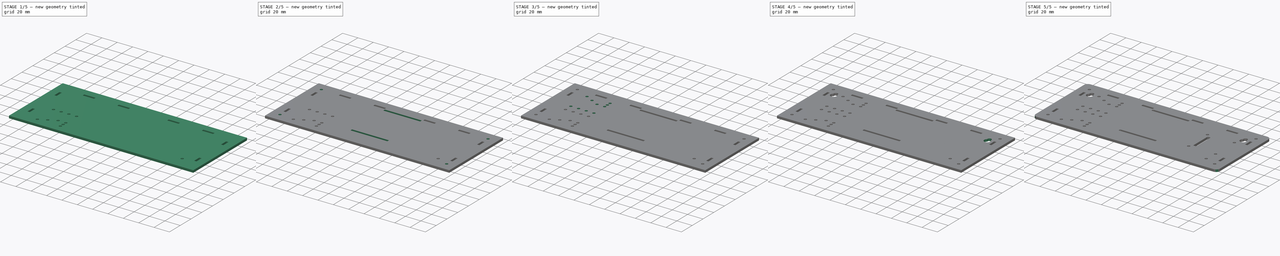
[diagram: build sequence overview — one tinted view per stage of 5, left to right]
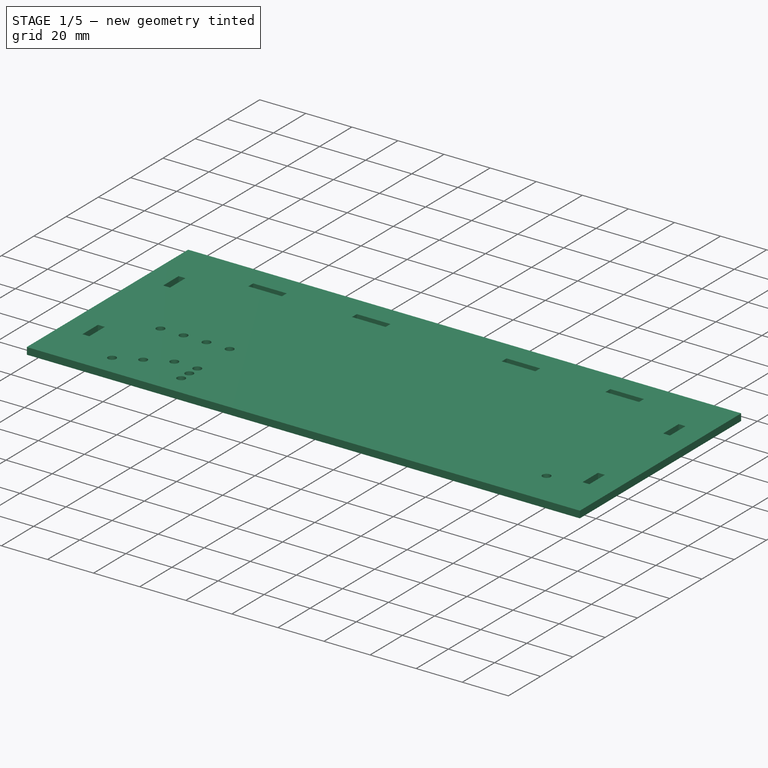
[diagram: stage 1 of 5 — iso view after this stage's code; geometry added in this stage tinted green]
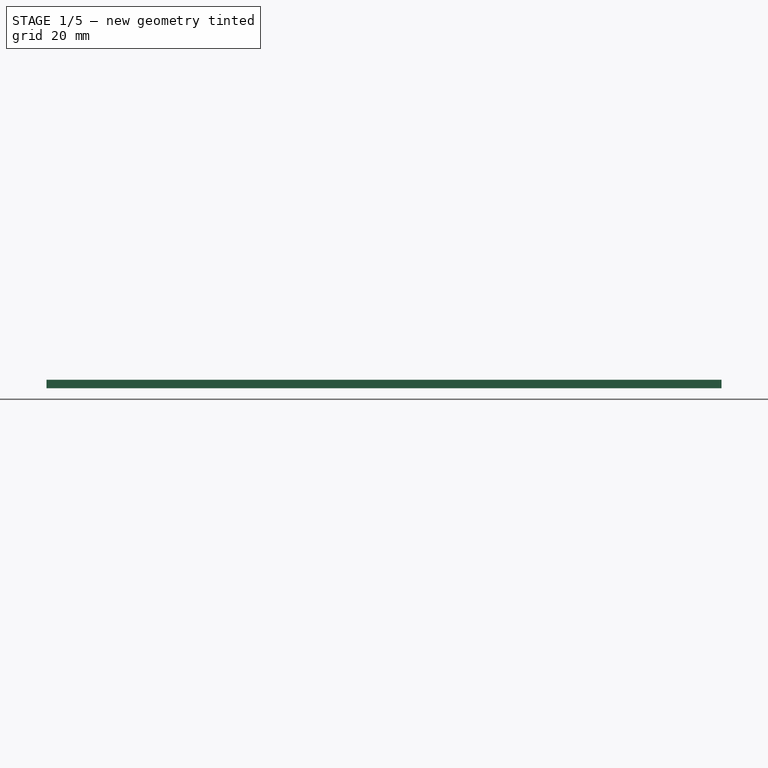
[diagram: stage 1 of 5 — front view after this stage's code; geometry added in this stage tinted green]
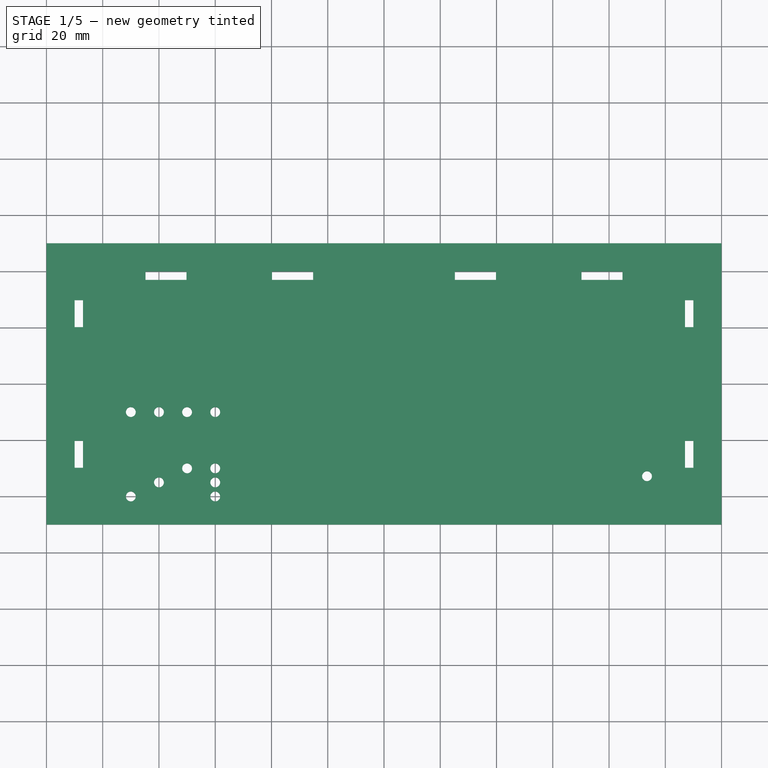
[diagram: stage 1 of 5 — top view after this stage's code; geometry added in this stage tinted green]
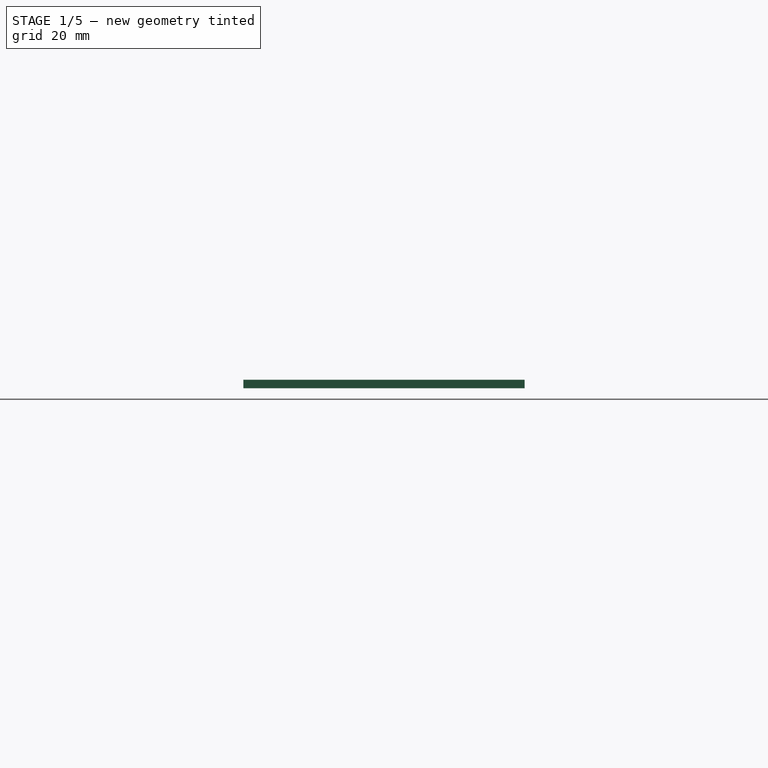
[diagram: stage 1 of 5 — right view after this stage's code; geometry added in this stage tinted green]
FCSTD DOCUMENT
Label: weather_kit_back
objects: Sketcher::SketchObject×8, PartDesign::Pad×8, Part::Cut×7, Part::Fillet×2, Drawing::FeatureViewPart×1, Drawing::FeaturePage×1
note: 33 computed .brp shape members not serialized (recipe doc carries the construction recipe); baked Part::Feature solids carry a one-line shape summary decoded from their .brp

FEATURE [PartDesign::Pad] Pad001
  Length = 3
  Length2 = 100
  Sketch = -> Sketch003003
  Type = 0
FEATURE [PartDesign::Pad] Pad009
  Length = 3
  Length2 = 100
  Sketch = -> Sketch003004
  Type = 0
FEATURE [Part::Cut] Cut
  Base = -> Pad001
  Tool = -> Pad009
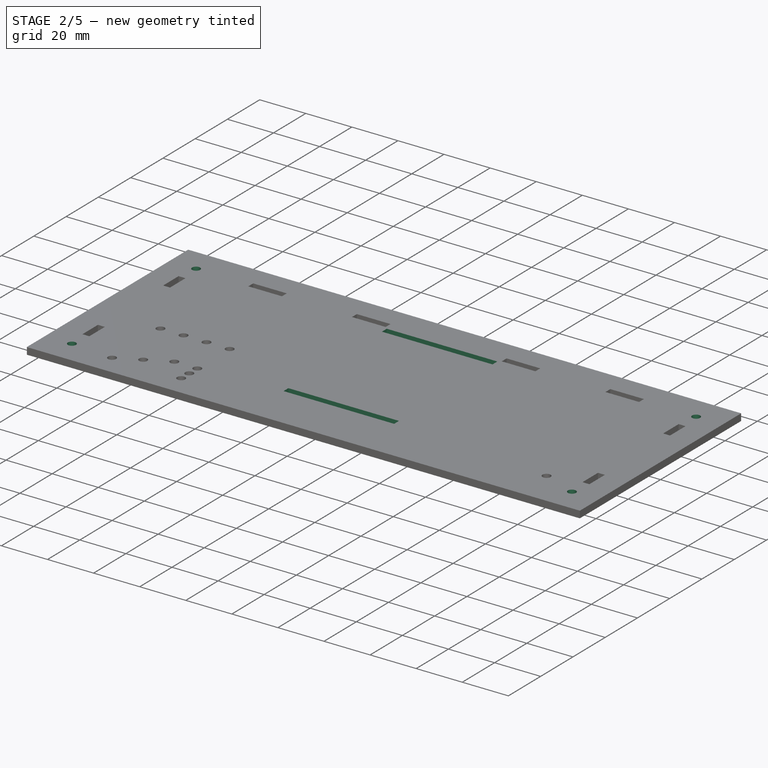
[diagram: stage 2 of 5 — iso view after this stage's code; geometry added in this stage tinted green]
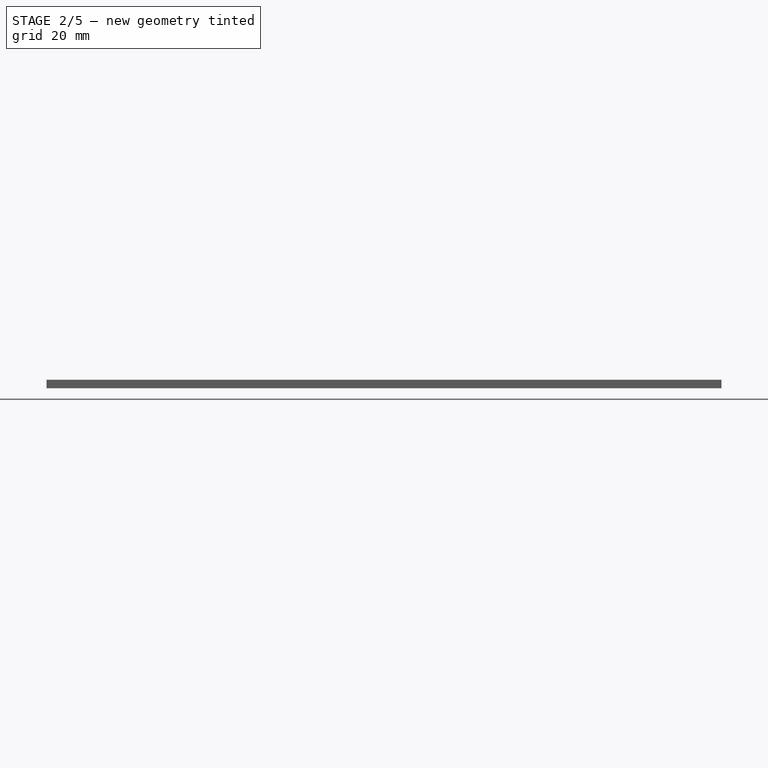
[diagram: stage 2 of 5 — front view after this stage's code; geometry added in this stage tinted green]
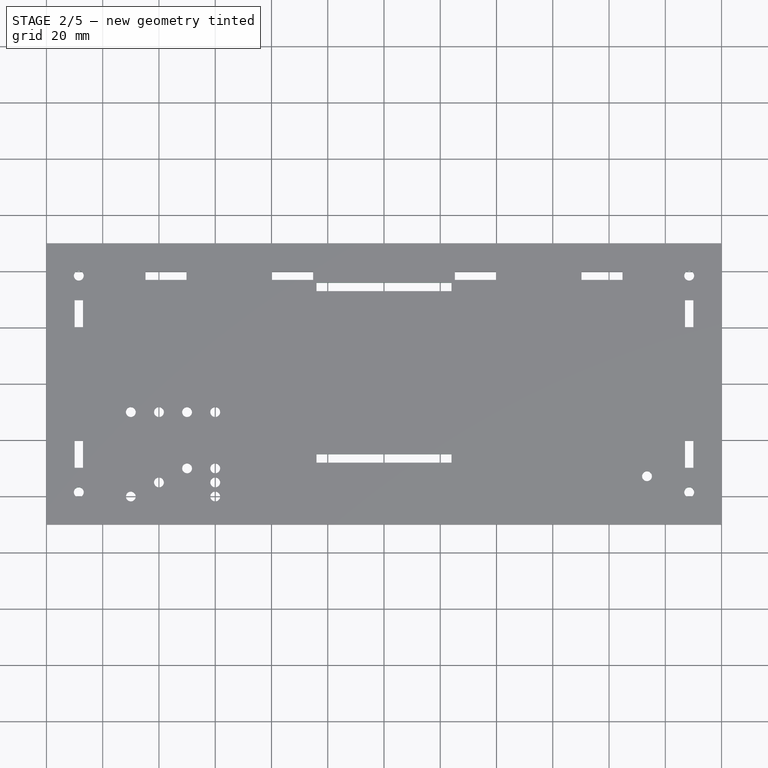
[diagram: stage 2 of 5 — top view after this stage's code; geometry added in this stage tinted green]
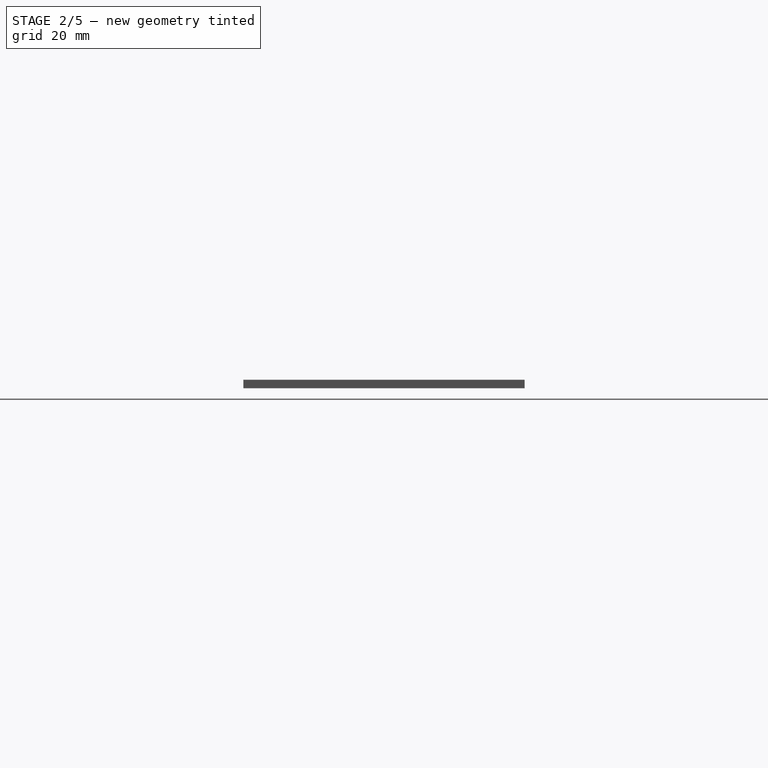
[diagram: stage 2 of 5 — right view after this stage's code; geometry added in this stage tinted green]
FEATURE [PartDesign::Pad] Pad003
  Length = 3
  Length2 = 100
  Sketch = -> Sketch002
  Type = 0
FEATURE [Sketcher::SketchObject] Sketch003007
  sketch-geometry (4):
    g0: Circle CenterX=-108.5 CenterY=38.5 CenterZ=0 NormalX=0 NormalY=0 NormalZ=1 Radius=1.75
    g1: Circle CenterX=-108.5 CenterY=-38.5 CenterZ=0 NormalX=0 NormalY=0 NormalZ=1 Radius=1.75
    g2: Circle CenterX=108.5 CenterY=-38.5 CenterZ=0 NormalX=0 NormalY=0 NormalZ=1 Radius=1.75
    g3: Circle CenterX=108.5 CenterY=38.5 CenterZ=0 NormalX=0 NormalY=0 NormalZ=1 Radius=1.75
  constraints (12):
    c: Radius(g0) = 1.75
    c: Radius(g1) = 1.75
    c: Radius(g2) = 1.75
    c: Radius(g3) = 1.75
    c: DistanceX(g-1,g0) = -108.5
    c: DistanceY(g-1,g0) = 38.5
    c: DistanceX(g-1,g1) = -108.5
    c: DistanceY(g-1,g1) = -38.5
    c: DistanceX(g-1,g2) = 108.5
    c: DistanceY(g-1,g2) = -38.5
    c: DistanceX(g-1,g3) = 108.5
    c: DistanceY(g-1,g3) = 38.5
FEATURE [PartDesign::Pad] Pad010
  Length = 3
  Length2 = 100
  Sketch = -> Sketch003007
  Type = 0
FEATURE [Part::Cut] Cut001
  Base = -> Cut
  Tool = -> Pad003
FEATURE [Part::Cut] Cut002
  Base = -> Cut001
  Tool = -> Pad010
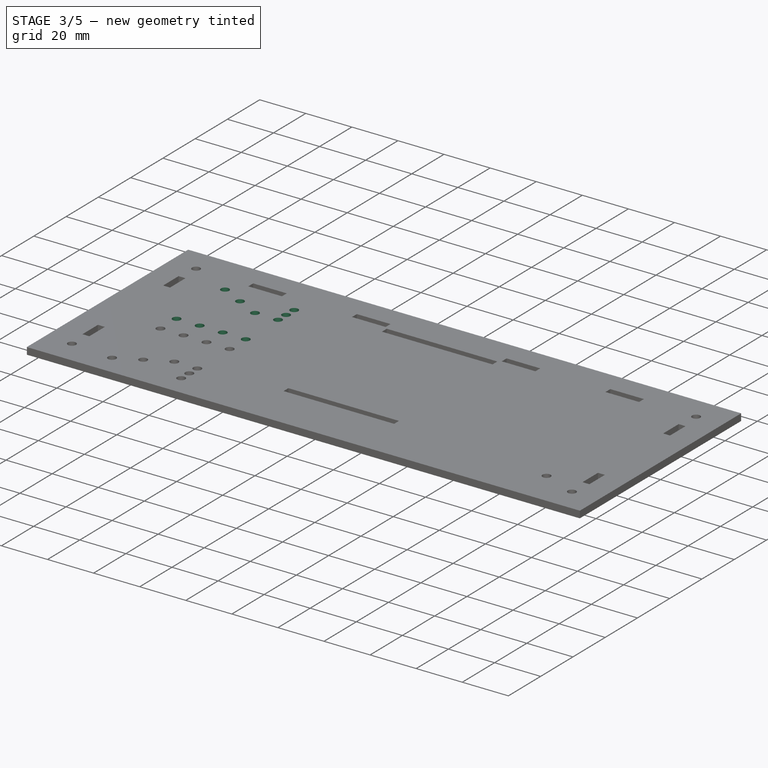
[diagram: stage 3 of 5 — iso view after this stage's code; geometry added in this stage tinted green]
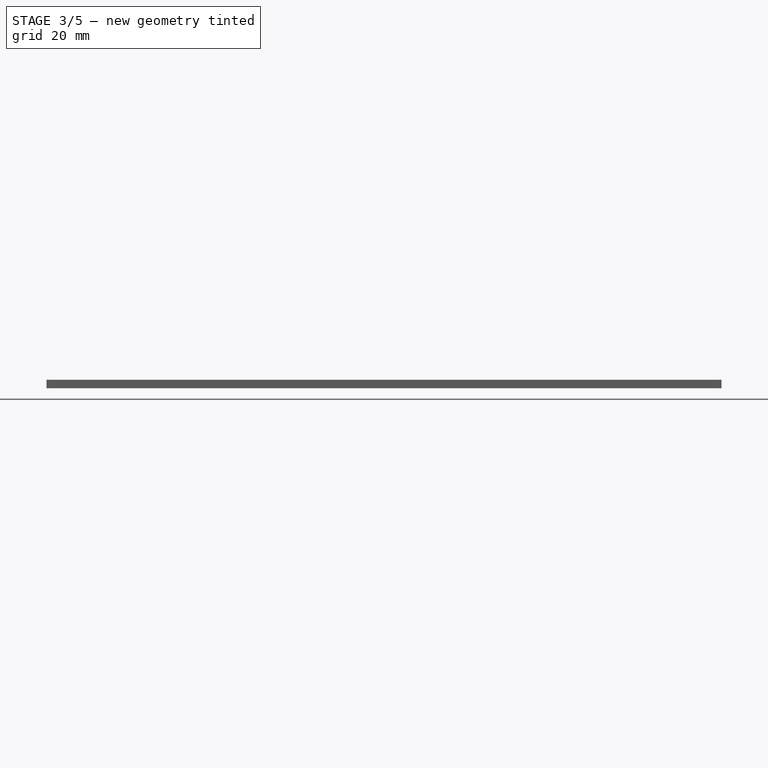
[diagram: stage 3 of 5 — front view after this stage's code; geometry added in this stage tinted green]
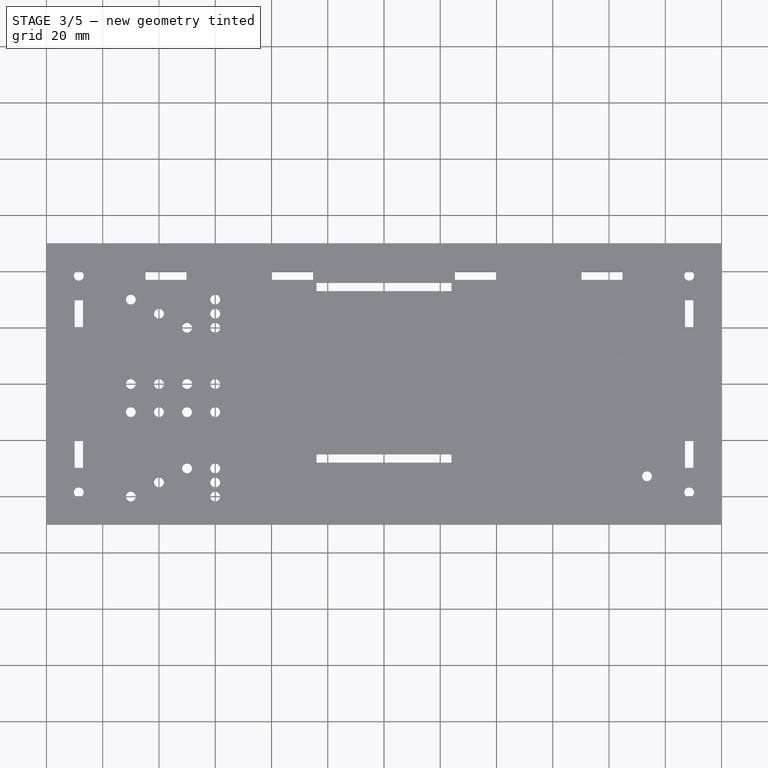
[diagram: stage 3 of 5 — top view after this stage's code; geometry added in this stage tinted green]
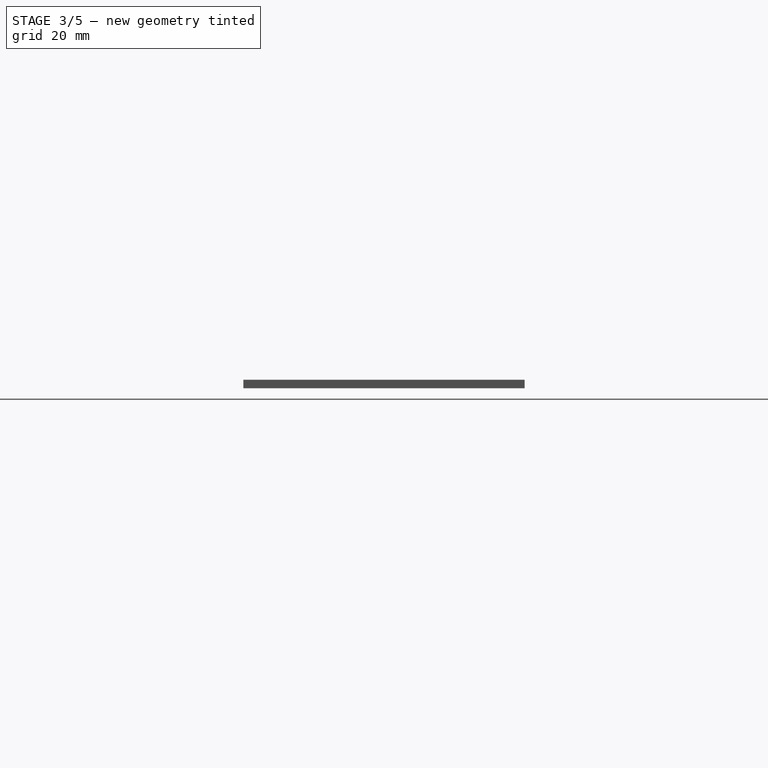
[diagram: stage 3 of 5 — right view after this stage's code; geometry added in this stage tinted green]
FEATURE [PartDesign::Pad] Pad007
  Length = 3
  Length2 = 100
  Sketch = -> Sketch003005
  Type = 0
FEATURE [PartDesign::Pad] Pad008
  Length = 3
  Length2 = 100
  Sketch = -> Sketch
  Type = 0
FEATURE [Part::Cut] Cut003
  Base = -> Cut002
  Tool = -> Pad008
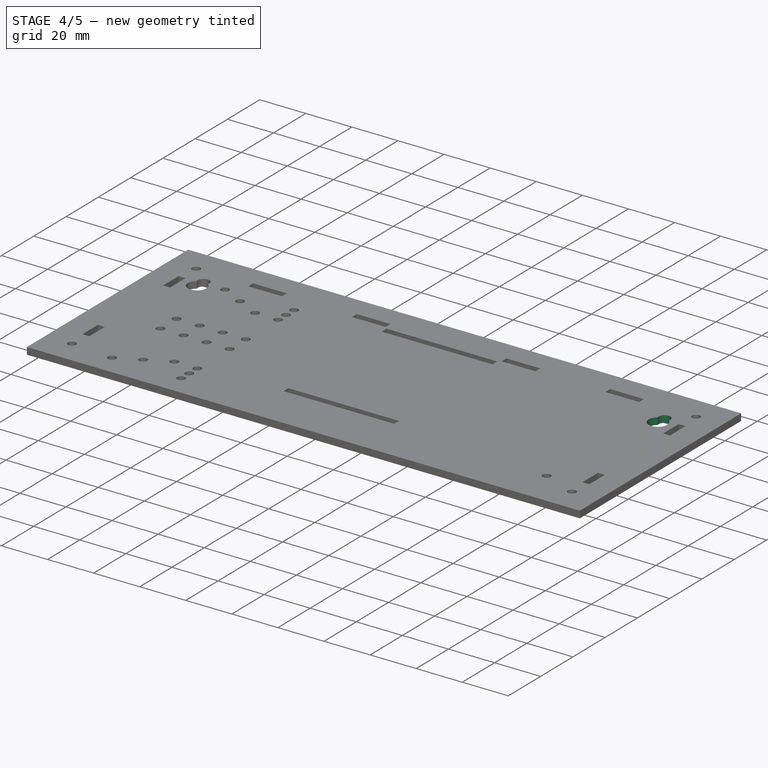
[diagram: stage 4 of 5 — iso view after this stage's code; geometry added in this stage tinted green]
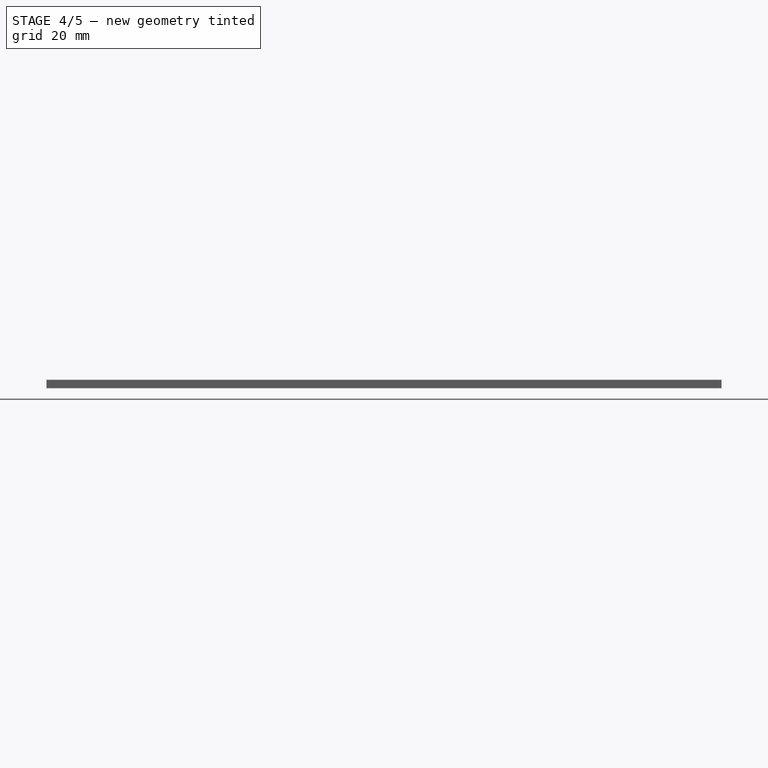
[diagram: stage 4 of 5 — front view after this stage's code; geometry added in this stage tinted green]
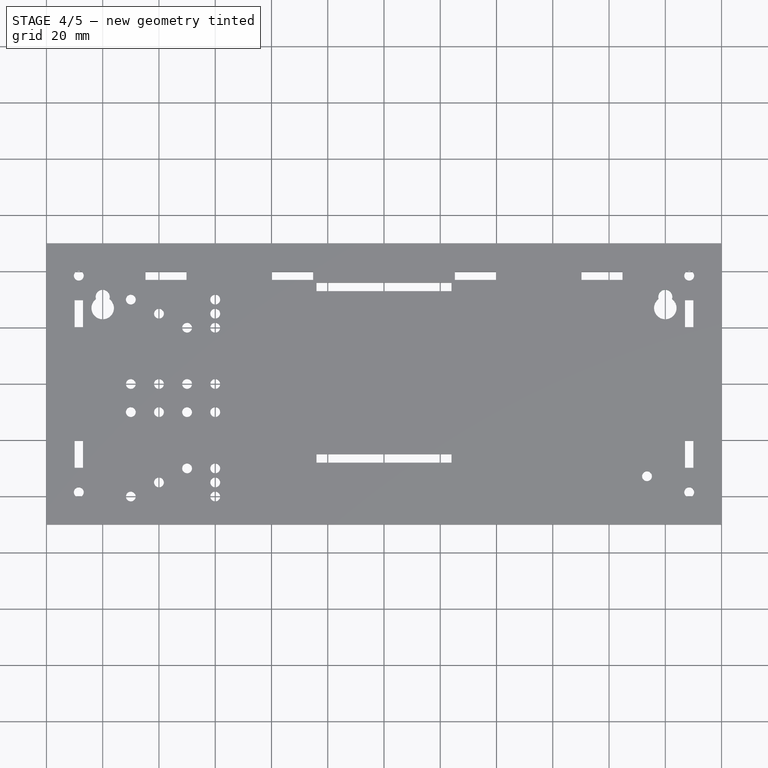
[diagram: stage 4 of 5 — top view after this stage's code; geometry added in this stage tinted green]
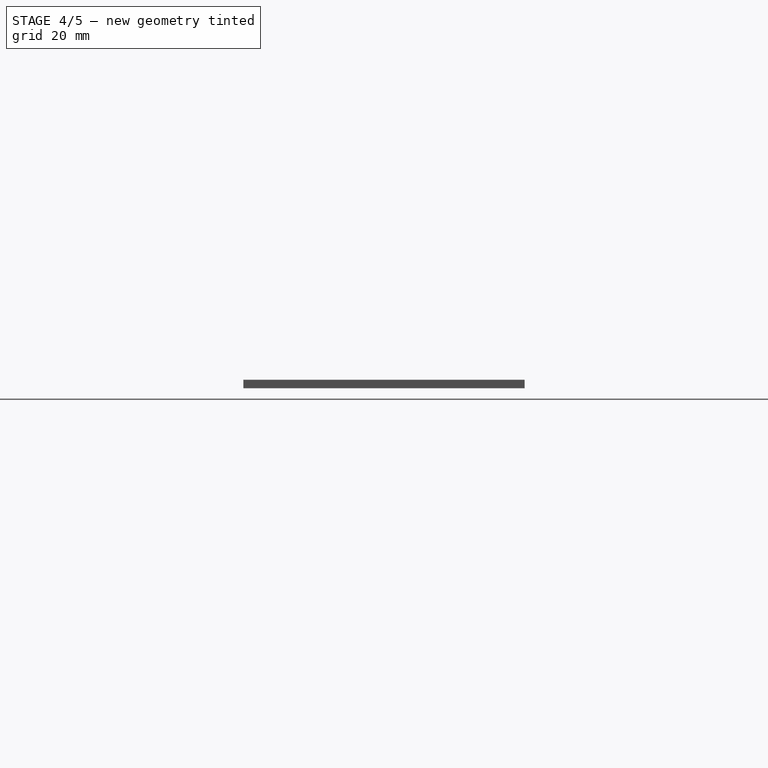
[diagram: stage 4 of 5 — right view after this stage's code; geometry added in this stage tinted green]
FEATURE [Sketcher::SketchObject] Sketch002  label="SketchRASP"
  sketch-geometry (13):
    g0: LineSegment [constr] StartX=39.3983 StartY=57.7127 StartZ=0 EndX=39.3983 EndY=42.7127 EndZ=0
    g1: LineSegment [constr] StartX=-42.5 StartY=32 StartZ=0 EndX=42.5 EndY=32 EndZ=0
    g2: LineSegment [constr] StartX=42.5 StartY=32 StartZ=0 EndX=42.5 EndY=-24 EndZ=0
    g3: LineSegment [constr] StartX=42.5 StartY=-24 StartZ=0 EndX=-42.5 EndY=-24 EndZ=0
    g4: LineSegment [constr] StartX=-42.5 StartY=-24 StartZ=0 EndX=-42.5 EndY=32 EndZ=0
    g5: LineSegment StartX=-24 StartY=36 StartZ=0 EndX=24 EndY=36 EndZ=0
    g6: LineSegment StartX=24 StartY=36 StartZ=0 EndX=24 EndY=33 EndZ=0
    g7: LineSegment StartX=24 StartY=33 StartZ=0 EndX=-24 EndY=33 EndZ=0
    g8: LineSegment StartX=-24 StartY=33 StartZ=0 EndX=-24 EndY=36 EndZ=0
    g9: LineSegment StartX=-24 StartY=-25 StartZ=0 EndX=24 EndY=-25 EndZ=0
    g10: LineSegment StartX=24 StartY=-25 StartZ=0 EndX=24 EndY=-28 EndZ=0
    g11: LineSegment StartX=24 StartY=-28 StartZ=0 EndX=-24 EndY=-28 EndZ=0
    g12: LineSegment StartX=-24 StartY=-28 StartZ=0 EndX=-24 EndY=-25 EndZ=0
  constraints (37):
    c: Vertical(g0)
    c: Coincident(g1,g2)
    c: Coincident(g2,g3)
    c: Coincident(g3,g4)
    c: Coincident(g4,g1)
    c: Horizontal(g1)
    c: Horizontal(g3)
    c: Vertical(g2)
    c: Vertical(g4)
    c: DistanceY(g4) = 56
    c: DistanceX(g3) = -85
    c: Coincident(g5,g6)
    c: Coincident(g6,g7)
    c: Coincident(g7,g8)
    c: Coincident(g8,g5)
    c: Horizontal(g5)
    c: Horizontal(g7)
    c: Vertical(g6)
    c: Vertical(g8)
    c: DistanceX(g5) = 48
    c: DistanceY(g6) = -3
    c: Coincident(g9,g10)
    c: Coincident(g10,g11)
    c: Coincident(g11,g12)
    c: Coincident(g12,g9)
    c: Horizontal(g9)
    c: Horizontal(g11)
    c: Vertical(g10)
    c: Vertical(g12)
    c: DistanceY(g10) = -3
    c: DistanceX(g9) = 48
    c: DistanceX(g9,g3) = -18.5
    c: DistanceX(g1,g7) = 18.5
    c: DistanceY(g1,g7) = 1
    c: DistanceY(g3,g9) = -1
    c: DistanceX(g-1,g1) = -42.5
    c: DistanceY(g-1,g1) = 32
FEATURE [Sketcher::SketchObject] Sketch004  label="SketchMaster"
  sketch-geometry (8):
    g0: Circle CenterX=60 CenterY=-17.5 CenterZ=0 NormalX=0 NormalY=0 NormalZ=1 Radius=1.75
    g1: Circle CenterX=60 CenterY=17.5 CenterZ=0 NormalX=0 NormalY=0 NormalZ=1 Radius=1.75
    g2: Circle CenterX=95 CenterY=17.5 CenterZ=0 NormalX=0 NormalY=0 NormalZ=1 Radius=1.75
    g3: Circle CenterX=95 CenterY=-17.5 CenterZ=0 NormalX=0 NormalY=0 NormalZ=1 Radius=1.75
    g4: LineSegment StartX=63 StartY=13.5 StartZ=0 EndX=67 EndY=13.5 EndZ=0
    g5: LineSegment StartX=67 StartY=13.5 StartZ=0 EndX=67 EndY=-13.5 EndZ=0
    g6: LineSegment StartX=67 StartY=-13.5 StartZ=0 EndX=63 EndY=-13.5 EndZ=0
    g7: LineSegment StartX=63 StartY=-13.5 StartZ=0 EndX=63 EndY=13.5 EndZ=0
  constraints (24):
    c: Radius(g3) = 1.75
    c: Radius(g2) = 1.75
    c: Radius(g1) = 1.75
    c: Radius(g0) = 1.75
    c: DistanceX(g1,g0) = 0
    c: DistanceY(g1,g0) = -35
    c: DistanceX(g0,g3) = 35
    c: DistanceY(g0,g3) = 0
    c: DistanceY(g3,g2) = 35
    c: DistanceX(g3,g2) = 0
    c: DistanceX(g-1,g0) = 60
    c: DistanceY(g-1,g0) = -17.5
    c: Coincident(g4,g5)
    c: Coincident(g5,g6)
    c: Coincident(g6,g7)
    c: Coincident(g7,g4)
    c: Horizontal(g4)
    c: Horizontal(g6)
    c: Vertical(g5)
    c: Vertical(g7)
    c: DistanceX(g6) = -4
    c: DistanceY(g3,g5) = 4
    c: DistanceY(g4,g2) = 4
    c: DistanceX(g6,g0) = -3
FEATURE [Sketcher::SketchObject] Sketch003003  label="SketchFront"
  sketch-geometry (37):
    g0: LineSegment StartX=-120 StartY=50 StartZ=0 EndX=120 EndY=50 EndZ=0
    g1: LineSegment StartX=120 StartY=50 StartZ=0 EndX=120 EndY=-50 EndZ=0
    g2: LineSegment StartX=-120 StartY=-50 StartZ=0 EndX=-120 EndY=50 EndZ=0
    g3: LineSegment StartX=107 StartY=-20.2 StartZ=0 EndX=110 EndY=-20.2 EndZ=0
    g4: LineSegment StartX=110 StartY=-20.2 StartZ=0 EndX=110 EndY=-29.8 EndZ=0
    g5: LineSegment StartX=110 StartY=-29.8 StartZ=0 EndX=107 EndY=-29.8 EndZ=0
    g6: LineSegment StartX=107 StartY=-29.8 StartZ=0 EndX=107 EndY=-20.2 EndZ=0
    g7: LineSegment StartX=107 StartY=29.8 StartZ=0 EndX=110 EndY=29.8 EndZ=0
    g8: LineSegment StartX=110 StartY=29.8 StartZ=0 EndX=110 EndY=20.2 EndZ=0
    g9: LineSegment StartX=110 StartY=20.2 StartZ=0 EndX=107 EndY=20.2 EndZ=0
    g10: LineSegment StartX=107 StartY=20.2 StartZ=0 EndX=107 EndY=29.8 EndZ=0
    g11: LineSegment StartX=-110 StartY=29.8 StartZ=0 EndX=-107 EndY=29.8 EndZ=0
    g12: LineSegment StartX=-107 StartY=29.8 StartZ=0 EndX=-107 EndY=20.2 EndZ=0
    g13: LineSegment StartX=-107 StartY=20.2 StartZ=0 EndX=-110 EndY=20.2 EndZ=0
    g14: LineSegment StartX=-110 StartY=20.2 StartZ=0 EndX=-110 EndY=29.8 EndZ=0
    g15: LineSegment StartX=-110 StartY=-20.2 StartZ=0 EndX=-107 EndY=-20.2 EndZ=0
    g16: LineSegment StartX=-107 StartY=-20.2 StartZ=0 EndX=-107 EndY=-29.8 EndZ=0
    g17: LineSegment StartX=-107 StartY=-29.8 StartZ=0 EndX=-110 EndY=-29.8 EndZ=0
    g18: LineSegment StartX=-110 StartY=-29.8 StartZ=0 EndX=-110 EndY=-20.2 EndZ=0
    g19: LineSegment StartX=-84.8 StartY=40 StartZ=0 EndX=-70.2 EndY=40 EndZ=0
    g20: LineSegment StartX=-70.2 StartY=40 StartZ=0 EndX=-70.2 EndY=37 EndZ=0
    g21: LineSegment StartX=-70.2 StartY=37 StartZ=0 EndX=-84.8 EndY=37 EndZ=0
    g22: LineSegment StartX=-84.8 StartY=37 StartZ=0 EndX=-84.8 EndY=40 EndZ=0
    g23: LineSegment StartX=-39.8 StartY=40 StartZ=0 EndX=-25.2 EndY=40 EndZ=0
    g24: LineSegment StartX=-25.2 StartY=40 StartZ=0 EndX=-25.2 EndY=37 EndZ=0
    g25: LineSegment StartX=-25.2 StartY=37 StartZ=0 EndX=-39.8 EndY=37 EndZ=0
    g26: LineSegment StartX=-39.8 StartY=37 StartZ=0 EndX=-39.8 EndY=40 EndZ=0
    g27: LineSegment StartX=25.2 StartY=40 StartZ=0 EndX=39.8 EndY=40 EndZ=0
    g28: LineSegment StartX=39.8 StartY=40 StartZ=0 EndX=39.8 EndY=37 EndZ=0
    g29: LineSegment StartX=39.8 StartY=37 StartZ=0 EndX=25.2 EndY=37 EndZ=0
    g30: LineSegment StartX=25.2 StartY=37 StartZ=0 EndX=25.2 EndY=40 EndZ=0
    g31: LineSegment StartX=70.2 StartY=40 StartZ=0 EndX=84.8 EndY=40 EndZ=0
    g32: LineSegment StartX=84.8 StartY=40 StartZ=0 EndX=84.8 EndY=37 EndZ=0
    g33: LineSegment StartX=84.8 StartY=37 StartZ=0 EndX=70.2 EndY=37 EndZ=0
    g34: LineSegment StartX=70.2 StartY=37 StartZ=0 EndX=70.2 EndY=40 EndZ=0
    g35: LineSegment StartX=120 StartY=-50 StartZ=0 EndX=-120 EndY=-50 EndZ=0
    g36: Circle CenterX=93.5 CenterY=-32.8 CenterZ=0 NormalX=0 NormalY=0 NormalZ=1 Radius=1.75
  constraints (111):
    c: Coincident(g0,g1)
    c: Coincident(g2,g0)
    c: Horizontal(g0)
    c: Vertical(g1)
    c: Vertical(g2)
    c: DistanceX(g0) = 240
    c: DistanceY(g1) = -100
    c: DistanceX(g-1,g0) = -120
    c: DistanceY(g-1,g0) = 50
    c: Coincident(g3,g4)
    c: Coincident(g4,g5)
    c: Coincident(g5,g6)
    c: Coincident(g6,g3)
    c: Horizontal(g3)
    c: Horizontal(g5)
    c: Vertical(g4)
    c: Vertical(g6)
    c: DistanceX(g5) = -3
    c: DistanceY(g4) = -9.6
    c: Coincident(g7,g8)
    c: Coincident(g8,g9)
    c: Coincident(g9,g10)
    c: Coincident(g10,g7)
    c: Horizontal(g7)
    c: Horizontal(g9)
    c: Vertical(g8)
    c: Vertical(g10)
    c: DistanceX(g9) = -3
    c: DistanceY(g10) = 9.6
    c: DistanceX(g7,g0) = 10
    c: DistanceY(g7,g0) = 20.2
    c: DistanceY(g4,g1) = -20.2
    c: DistanceX(g4,g1) = 10
    c: Coincident(g11,g12)
    c: Coincident(g12,g13)
    c: Coincident(g13,g14)
    c: Coincident(g14,g11)
    c: Horizontal(g11)
    c: Horizontal(g13)
    c: Vertical(g12)
    c: Vertical(g14)
    c: Coincident(g15,g16)
    c: Coincident(g16,g17)
    c: Coincident(g17,g18)
    c: Coincident(g18,g15)
    c: Horizontal(g15)
    c: Horizontal(g17)
    c: Vertical(g16)
    c: Vertical(g18)
    c: DistanceX(g17) = -3
    c: DistanceY(g18) = 9.6
    c: DistanceX(g13) = -3
    c: DistanceY(g14) = 9.6
    c: DistanceX(g2,g17) = 10
    c: DistanceY(g17,g2) = -20.2
    c: DistanceX(g11,g0) = -10
    c: DistanceY(g11,g0) = 20.2
    c: Coincident(g19,g20)
    c: Coincident(g20,g21)
    c: Coincident(g21,g22)
    c: Coincident(g22,g19)
    c: Horizontal(g19)
    c: Horizontal(g21)
    c: Vertical(g20)
    c: Vertical(g22)
    c: Coincident(g23,g24)
    c: Coincident(g24,g25)
    c: Coincident(g25,g26)
    c: Coincident(g26,g23)
    c: Horizontal(g23)
    c: Horizontal(g25)
    c: Vertical(g24)
    c: Vertical(g26)
    c: DistanceX(g23) = 14.6
    c: DistanceY(g24) = -3
    c: DistanceY(g20) = -3
    c: DistanceX(g19) = 14.6
    c: DistanceX(g19,g0) = -35.2
    c: DistanceY(g0,g19) = -10
    c: DistanceY(g23,g19) = 0
    c: DistanceX(g19,g23) = 30.4
    c: Coincident(g27,g28)
    c: Coincident(g28,g29)
    c: Coincident(g29,g30)
    c: Coincident(g30,g27)
    c: Horizontal(g27)
    c: Horizontal(g29)
    c: Vertical(g28)
    c: Vertical(g30)
    c: Coincident(g31,g32)
    c: Coincident(g32,g33)
    c: Coincident(g33,g34)
    c: Coincident(g34,g31)
    c: Horizontal(g31)
    c: Horizontal(g33)
    c: Vertical(g32)
    c: Vertical(g34)
    c: DistanceX(g33) = -14.6
    c: DistanceX(g29) = -14.6
    c: DistanceY(g30) = 3
    c: DistanceY(g34) = 3
    c: DistanceY(g31,g27) = 0
    c: DistanceX(g27,g31) = 30.4
    c: DistanceX(g31,g0) = 35.2
    c: DistanceY(g31,g0) = 10
    c: Coincident(g35,g1)
    c: Coincident(g35,g2)
    c: Horizontal(g35)
    c: Radius(g36) = 1.75
    c: DistanceY(g5,g36) = -3
    c: DistanceX(g36,g5) = 13.5
FEATURE [PartDesign::Pad] Pad
  Length = 3
  Length2 = 100
  Sketch = -> Sketch004
  Type = 0
FEATURE [Sketcher::SketchObject] Sketch  label="SketchBricklets1"
  sketch-geometry (10):
    g0: Circle CenterX=-90 CenterY=30 CenterZ=0 NormalX=0 NormalY=0 NormalZ=1 Radius=1.75
    g1: Circle CenterX=-60 CenterY=30 CenterZ=0 NormalX=0 NormalY=0 NormalZ=1 Radius=1.75
    g2: Circle CenterX=-90 CenterY=0 CenterZ=0 NormalX=0 NormalY=0 NormalZ=1 Radius=1.75
    g3: Circle CenterX=-60 CenterY=0 CenterZ=0 NormalX=0 NormalY=0 NormalZ=1 Radius=1.75
    g4: Circle CenterX=-80 CenterY=0 CenterZ=0 NormalX=0 NormalY=0 NormalZ=1 Radius=1.75
    g5: Circle CenterX=-80 CenterY=25 CenterZ=0 NormalX=0 NormalY=0 NormalZ=1 Radius=1.75
    g6: Circle CenterX=-60 CenterY=25 CenterZ=0 NormalX=0 NormalY=0 NormalZ=1 Radius=1.75
    g7: Circle CenterX=-70 CenterY=0 CenterZ=0 NormalX=0 NormalY=0 NormalZ=1 Radius=1.75
    g8: Circle CenterX=-70 CenterY=20 CenterZ=0 NormalX=0 NormalY=0 NormalZ=1 Radius=1.75
    g9: Circle CenterX=-60 CenterY=20 CenterZ=0 NormalX=0 NormalY=0 NormalZ=1 Radius=1.75
  constraints (30):
    c: Radius(g1) = 1.75
    c: Radius(g0) = 1.75
    c: Radius(g3) = 1.75
    c: Radius(g2) = 1.75
    c: DistanceY(g2,g0) = 30
    c: DistanceX(g2,g3) = 30
    c: DistanceX(g0,g1) = 30
    c: DistanceY(g1,g3) = -30
    c: DistanceY(g1,g0) = 0
    c: DistanceX(g0,g2) = 0
    c: Radius(g6) = 1.75
    c: Radius(g5) = 1.75
    c: Radius(g4) = 1.75
    c: DistanceX(g4,g3) = 20
    c: DistanceY(g4,g5) = 25
    c: DistanceX(g5,g6) = 20
    c: DistanceY(g4,g3) = 0
    c: DistanceX(g6,g1) = 0
    c: DistanceY(g3,g6) = 25
    c: Radius(g9) = 1.75
    c: Radius(g8) = 1.75
    c: Radius(g7) = 1.75
    c: DistanceY(g7,g8) = 20
    c: DistanceY(g7,g3) = 0
    c: DistanceX(g7,g3) = 10
    c: DistanceX(g7,g8) = 0
    c: DistanceY(g9,g3) = -20
    c: DistanceX(g8,g9) = 10
    c: DistanceX(g-1,g3) = -60
    c: DistanceY(g-1,g3) = 0
FEATURE [Sketcher::SketchObject] Sketch003004  label="SketchBricklets2"
  sketch-geometry (10):
    g0: Circle CenterX=-90 CenterY=-40 CenterZ=0 NormalX=0 NormalY=0 NormalZ=1 Radius=1.75
    g1: Circle CenterX=-60 CenterY=-40 CenterZ=0 NormalX=0 NormalY=0 NormalZ=1 Radius=1.75
    g2: Circle CenterX=-90 CenterY=-10 CenterZ=0 NormalX=0 NormalY=0 NormalZ=1 Radius=1.75
    g3: Circle CenterX=-60 CenterY=-10 CenterZ=0 NormalX=0 NormalY=0 NormalZ=1 Radius=1.75
    g4: Circle CenterX=-80 CenterY=-10 CenterZ=0 NormalX=0 NormalY=0 NormalZ=1 Radius=1.75
    g5: Circle CenterX=-80 CenterY=-35 CenterZ=0 NormalX=0 NormalY=0 NormalZ=1 Radius=1.75
    g6: Circle CenterX=-60 CenterY=-35 CenterZ=0 NormalX=0 NormalY=0 NormalZ=1 Radius=1.75
    g7: Circle CenterX=-70 CenterY=-10 CenterZ=0 NormalX=0 NormalY=0 NormalZ=1 Radius=1.75
    g8: Circle CenterX=-70 CenterY=-30 CenterZ=0 NormalX=0 NormalY=0 NormalZ=1 Radius=1.75
    g9: Circle CenterX=-60 CenterY=-30 CenterZ=0 NormalX=0 NormalY=0 NormalZ=1 Radius=1.75
  constraints (30):
    c: Radius(g1) = 1.75
    c: Radius(g0) = 1.75
    c: Radius(g3) = 1.75
    c: Radius(g2) = 1.75
    c: DistanceY(g2,g0) = -30
    c: DistanceX(g2,g3) = 30
    c: DistanceX(g0,g1) = 30
    c: DistanceY(g1,g3) = 30
    c: DistanceY(g1,g0) = 0
    c: DistanceX(g0,g2) = 0
    c: Radius(g6) = 1.75
    c: Radius(g5) = 1.75
    c: Radius(g4) = 1.75
    c: DistanceX(g4,g3) = 20
    c: DistanceY(g4,g5) = -25
    c: DistanceX(g5,g6) = 20
    c: DistanceY(g4,g3) = 0
    c: DistanceX(g6,g1) = 0
    c: DistanceY(g3,g6) = -25
    c: Radius(g9) = 1.75
    c: Radius(g8) = 1.75
    c: Radius(g7) = 1.75
    c: DistanceY(g7,g8) = -20
    c: DistanceY(g7,g3) = 0
    c: DistanceX(g7,g3) = 10
    c: DistanceX(g7,g8) = 0
    c: DistanceY(g9,g3) = 20
    c: DistanceX(g8,g9) = 10
    c: DistanceX(g-1,g3) = -60
    c: DistanceY(g-1,g3) = -10
FEATURE [Sketcher::SketchObject] Sketch003005  label="SketchMount1"
  sketch-geometry (4):
    g0: ArcOfCircle CenterX=-100 CenterY=27 CenterZ=0 NormalX=0 NormalY=0 NormalZ=1 Radius=4 StartAngle=2.20644 EndAngle=7.21833
    g1: ArcOfCircle CenterX=-100 CenterY=31 CenterZ=0 NormalX=0 NormalY=0 NormalZ=1 Radius=2.5 StartAngle=5.96536 EndAngle=9.7426
    g2: LineSegment [constr] StartX=-100 StartY=31 StartZ=0 EndX=-100 EndY=27 EndZ=0
    g3: LineSegment [constr] StartX=-100 StartY=27 StartZ=0 EndX=-97.5 EndY=30.1225 EndZ=0
  constraints (14):
    c: PointOnObject(g2,g0)
    c: Radius(g1) = 2.5
    c: Radius(g0) = 4
    c: Parallel(g2,g-2)
    c: Coincident(g0,g2)
    c: Coincident(g3,g0)
    c: PointOnObject(g3,g0)
    c: Tangent(g3,g1)
    c: Coincident(g1,g0)
    c: Coincident(g0,g2)
    c: Coincident(g1,g0)
    c: Coincident(g2,g1)
    c: DistanceX(g-1,g0) = -100
    c: DistanceY(g-1,g0) = 27
FEATURE [Sketcher::SketchObject] Sketch003006  label="SketchMount2"
  sketch-geometry (4):
    g0: ArcOfCircle CenterX=100 CenterY=27 CenterZ=0 NormalX=0 NormalY=0 NormalZ=1 Radius=4 StartAngle=2.20644 EndAngle=7.21833
    g1: ArcOfCircle CenterX=100 CenterY=31 CenterZ=0 NormalX=0 NormalY=0 NormalZ=1 Radius=2.5 StartAngle=5.96536 EndAngle=9.7426
    g2: LineSegment [constr] StartX=100 StartY=31 StartZ=0 EndX=100 EndY=27 EndZ=0
    g3: LineSegment [constr] StartX=100 StartY=27 StartZ=0 EndX=102.5 EndY=30.1225 EndZ=0
  constraints (14):
    c: PointOnObject(g2,g0)
    c: Radius(g1) = 2.5
    c: Radius(g0) = 4
    c: Parallel(g2,g-2)
    c: Coincident(g0,g2)
    c: Coincident(g3,g0)
    c: PointOnObject(g3,g0)
    c: Tangent(g3,g1)
    c: Coincident(g1,g0)
    c: Coincident(g0,g2)
    c: Coincident(g1,g0)
    c: Coincident(g2,g1)
    c: DistanceX(g-1,g0) = 100
    c: DistanceY(g-1,g0) = 27
FEATURE [PartDesign::Pad] Pad006
  Length = 3
  Length2 = 100
  Sketch = -> Sketch003006
  Type = 0
FEATURE [Part::Cut] Cut004
  Base = -> Cut003
  Tool = -> Pad007
FEATURE [Part::Cut] Cut005
  Base = -> Cut004
  Tool = -> Pad006
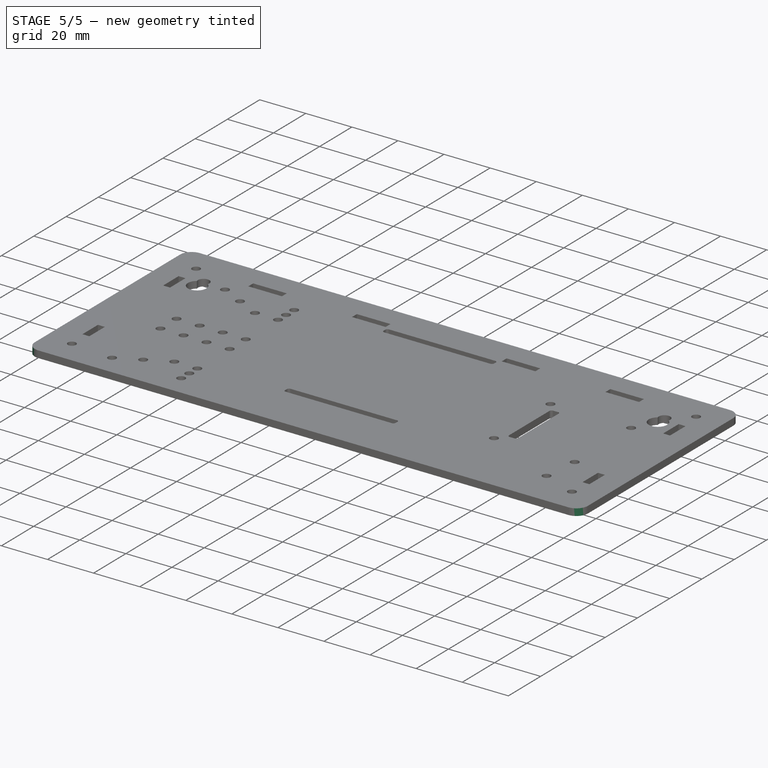
[diagram: stage 5 of 5 — iso view after this stage's code; geometry added in this stage tinted green]
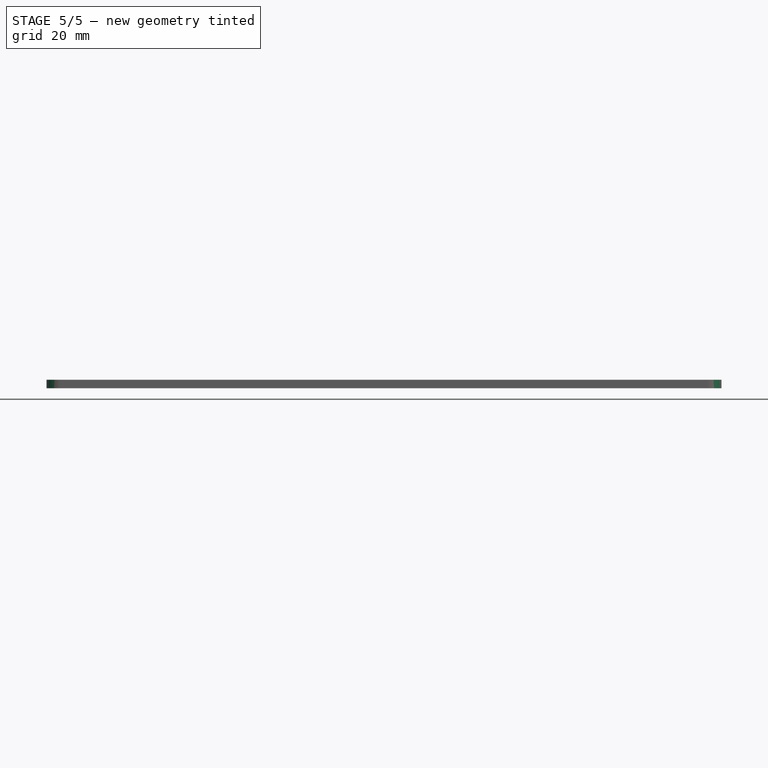
[diagram: stage 5 of 5 — front view after this stage's code; geometry added in this stage tinted green]
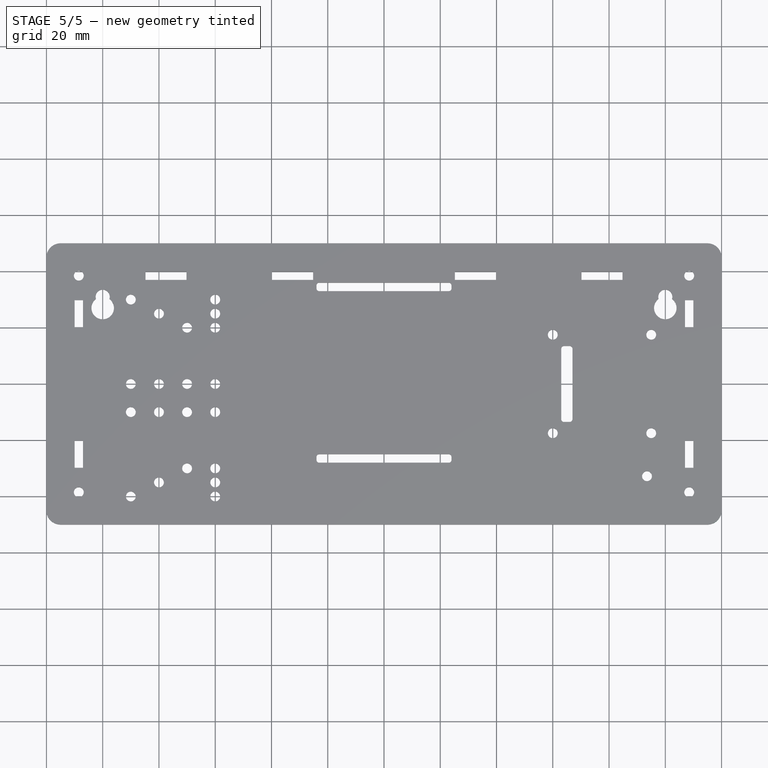
[diagram: stage 5 of 5 — top view after this stage's code; geometry added in this stage tinted green]
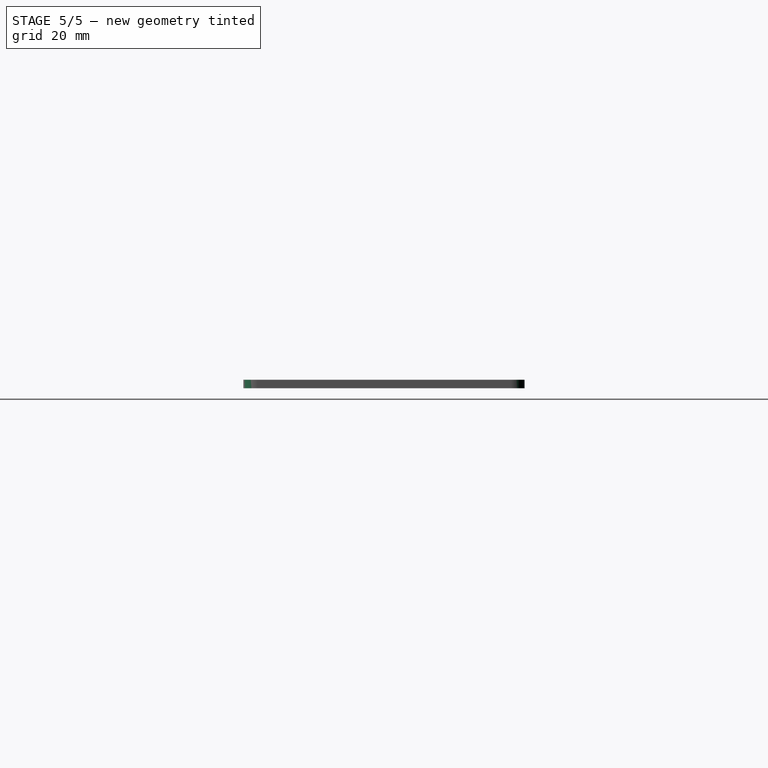
[diagram: stage 5 of 5 — right view after this stage's code; geometry added in this stage tinted green]
FEATURE [Part::Cut] Cut006
  Base = -> Cut005
  Tool = -> Pad
FEATURE [Part::Fillet] Fillet
  Base = -> Cut006
  Edges = 4 edges r=5: [Edge1,Edge2,Edge5,Edge8]
FEATURE [Part::Fillet] Fillet001
  Base = -> Fillet
  Edges = 12 edges r=1: [Edge244,Edge245,Edge246,Edge247,Edge248,Edge249,Edge250,Edge251,Edge252,Edge253,Edge254,Edge255]
FEATURE [Drawing::FeatureViewPart] View
  Direction = (0,0,1)
  LineWidth = 0.35
  Rotation = 0
  ShowHiddenLines = false
  ShowSmoothLines = false
  Source = -> Fillet001
  Tolerance = 0.05
  ViewResult = <blob: 4463 chars omitted>
  X = 150
  Y = 100
FEATURE [Drawing::FeaturePage] Page001
  EditableTexts = AUTHOR NAME | CREATION DATE | SUPERVISOR NAME | CHECK DATE | SCALE | WEIGHT | NUMBER | SHEET | TITLE | SUBTITLE
  Group = -> [View]
  Template = <path>
note: 1 file-system path scrubbed to <path> (originals preserved in the JSON sidecar)
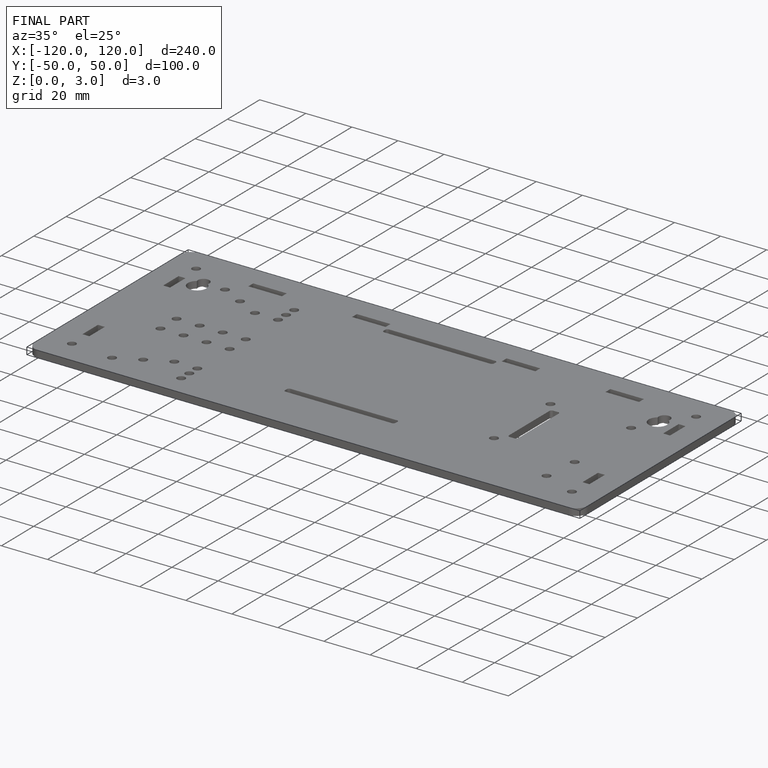
[diagram: finished part — iso view with bounding-box wireframe]
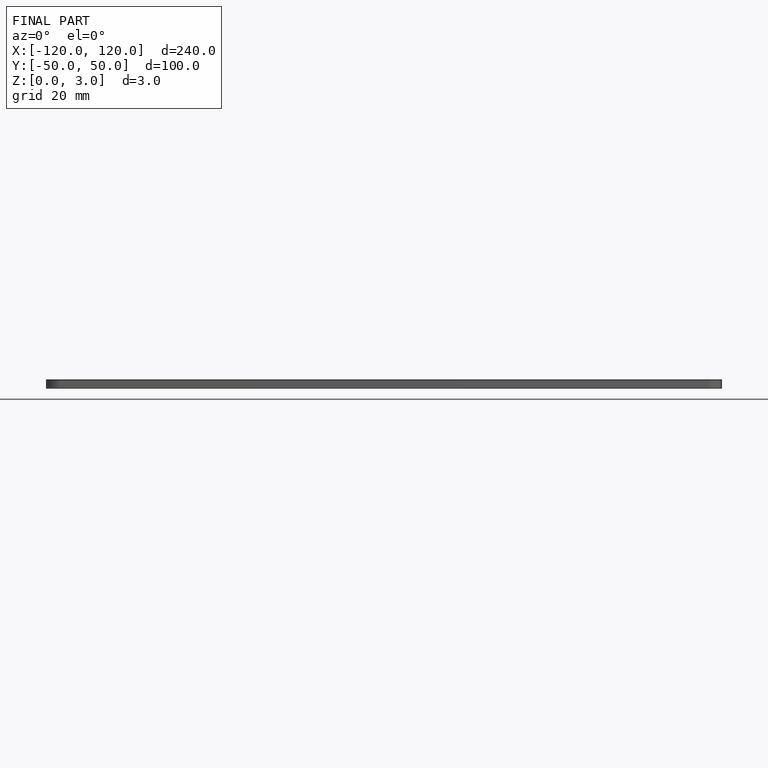
[diagram: finished part — front view with bounding-box wireframe]
